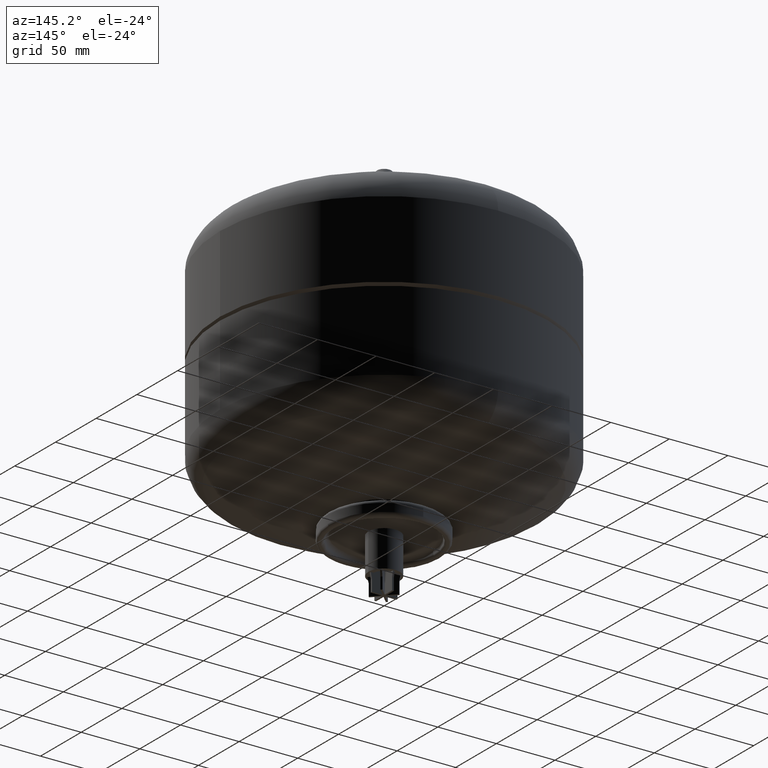
[diagram: clean part render]
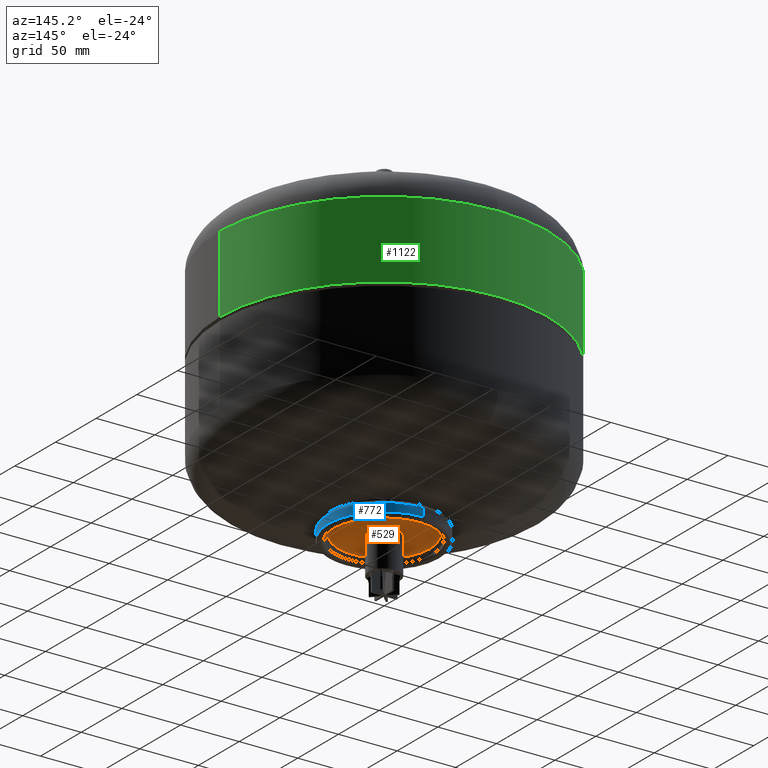
[diagram: same view with three faces highlighted in distinct colors, each labeled with its STEP entity id]
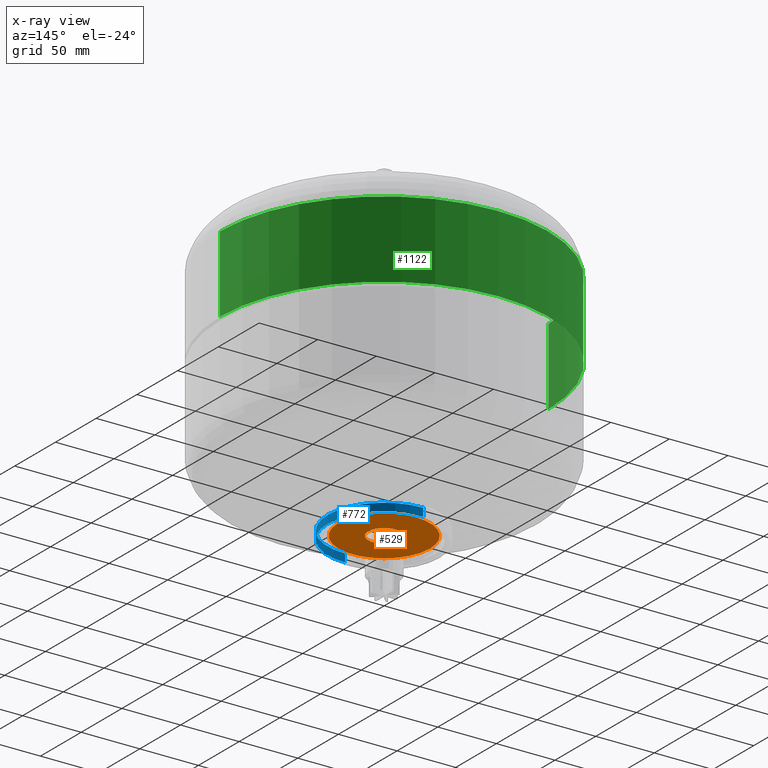
[diagram: x-ray of the same camera — body ghosted, the three highlighted faces saturated]
A machine part, auxiliary view with three faces highlighted in distinct colors.
The next image is the same camera in x-ray (body ghosted, the three faces saturated) — at least one of them is partly hidden behind the body in this view.
Their STEP definitions:

[orange] entity #529 — the highlighted planar face has unit normal (0, 0, -1).
#275=CARTESIAN_POINT('',(13.449999999999999,0.0,45.999999999999986));
#276=VERTEX_POINT('',#275);
#285=CARTESIAN_POINT('',(-13.449999999999999,1.647096E-015,45.999999999999993));
#286=VERTEX_POINT('',#285);
#287=CARTESIAN_POINT('',(0.0,0.0,45.999999999999993));
#288=DIRECTION('',(0.0,0.0,-1.0));
#289=DIRECTION('',(1.0,0.0,0.0));
#290=AXIS2_PLACEMENT_3D('',#287,#288,#289);
#291=CIRCLE('',#290,13.449999999999999);
#292=EDGE_CURVE('',#276,#286,#291,.T.);
#409=CARTESIAN_POINT('',(-39.000000000000007,3.136209E-016,46.0));
#410=VERTEX_POINT('',#409);
#436=CARTESIAN_POINT('',(39.000000000000007,-4.462344E-015,46.0));
#437=VERTEX_POINT('',#436);
#445=CARTESIAN_POINT('',(0.0,39.0,46.0));
#446=VERTEX_POINT('',#445);
#447=CARTESIAN_POINT('',(0.0,0.0,46.0));
#448=DIRECTION('',(0.0,0.0,-1.0));
#449=DIRECTION('',(0.0,1.0,0.0));
#450=AXIS2_PLACEMENT_3D('',#447,#448,#449);
#451=CIRCLE('',#450,39.000000000000007);
#452=EDGE_CURVE('',#446,#437,#451,.T.);
#454=CARTESIAN_POINT('',(0.0,0.0,46.0));
#455=DIRECTION('',(0.0,0.0,-1.0));
#456=DIRECTION('',(0.0,1.0,0.0));
#457=AXIS2_PLACEMENT_3D('',#454,#455,#456);
#458=CIRCLE('',#457,39.000000000000007);
#459=EDGE_CURVE('',#410,#446,#458,.T.);
#503=CARTESIAN_POINT('',(0.0,19.500000000000000,45.999999999999993));
#504=DIRECTION('',(0.0,0.0,-1.0));
#505=DIRECTION('',(-1.0,0.0,0.0));
#506=AXIS2_PLACEMENT_3D('',#503,#504,#505);
#507=PLANE('',#506);
#508=ORIENTED_EDGE('',*,*,#452,.T.);
#509=CARTESIAN_POINT('',(0.0,0.0,46.0));
#510=DIRECTION('',(0.0,0.0,-1.0));
#511=DIRECTION('',(0.0,1.0,0.0));
#512=AXIS2_PLACEMENT_3D('',#509,#510,#511);
#513=CIRCLE('',#512,39.000000000000007);
#514=EDGE_CURVE('',#437,#410,#513,.T.);
#515=ORIENTED_EDGE('',*,*,#514,.T.);
#516=ORIENTED_EDGE('',*,*,#459,.T.);
#517=EDGE_LOOP('',(#508,#515,#516));
#518=FACE_OUTER_BOUND('',#517,.T.);
#519=CARTESIAN_POINT('',(0.0,0.0,45.999999999999993));
#520=DIRECTION('',(0.0,0.0,-1.0));
#521=DIRECTION('',(1.0,0.0,0.0));
#522=AXIS2_PLACEMENT_3D('',#519,#520,#521);
#523=CIRCLE('',#522,13.449999999999999);
#524=EDGE_CURVE('',#286,#276,#523,.T.);
#525=ORIENTED_EDGE('',*,*,#524,.F.);
#526=ORIENTED_EDGE('',*,*,#292,.F.);
#527=EDGE_LOOP('',(#525,#526));
#528=FACE_BOUND('',#527,.T.);
#529=ADVANCED_FACE('',(#518,#528),#507,.T.);

[blue] entity #772 — the highlighted cylindrical surface (partial cylindrical patch) has radius 48 mm, axis along (0, -0, -1).
#130=CARTESIAN_POINT('',(0.0,48.0,42.999999999999993));
#131=VERTEX_POINT('',#130);
#132=CARTESIAN_POINT('',(0.0,48.0,50.000000000000007));
#133=VERTEX_POINT('',#132);
#134=CARTESIAN_POINT('',(0.0,48.0,42.999999999999993));
#135=DIRECTION('',(0.0,0.0,1.0));
#136=VECTOR('',#135,7.000000000000014);
#137=LINE('',#134,#136);
#138=EDGE_CURVE('',#131,#133,#137,.T.);
#149=CARTESIAN_POINT('',(-5.878110E-015,-48.000000000000007,43.0));
#150=VERTEX_POINT('',#149);
#158=CARTESIAN_POINT('',(-5.878110E-015,-48.000000000000007,50.000000000000014));
#159=VERTEX_POINT('',#158);
#160=CARTESIAN_POINT('',(-5.878110E-015,-48.000000000000007,43.0));
#161=DIRECTION('',(0.0,0.0,1.0));
#162=VECTOR('',#161,7.000000000000014);
#163=LINE('',#160,#162);
#164=EDGE_CURVE('',#150,#159,#163,.T.);
#242=CARTESIAN_POINT('',(48.000000000000007,-5.878110E-015,50.000000000000007));
#243=VERTEX_POINT('',#242);
#244=CARTESIAN_POINT('',(0.0,0.0,50.000000000000007));
#245=DIRECTION('',(0.0,0.0,-1.0));
#246=DIRECTION('',(0.0,1.0,0.0));
#247=AXIS2_PLACEMENT_3D('',#244,#245,#246);
#248=CIRCLE('',#247,48.000000000000007);
#249=EDGE_CURVE('',#243,#159,#248,.T.);
#483=CARTESIAN_POINT('',(48.000000000000007,-5.878110E-015,43.0));
#484=VERTEX_POINT('',#483);
#492=CARTESIAN_POINT('',(0.0,0.0,43.0));
#493=DIRECTION('',(0.0,0.0,-1.0));
#494=DIRECTION('',(0.0,1.0,0.0));
#495=AXIS2_PLACEMENT_3D('',#492,#493,#494);
#496=CIRCLE('',#495,48.000000000000007);
#497=EDGE_CURVE('',#484,#150,#496,.T.);
#553=CARTESIAN_POINT('',(0.0,0.0,43.0));
#554=DIRECTION('',(0.0,0.0,-1.0));
#555=DIRECTION('',(0.0,1.0,0.0));
#556=AXIS2_PLACEMENT_3D('',#553,#554,#555);
#557=CIRCLE('',#556,48.000000000000007);
#558=EDGE_CURVE('',#131,#484,#557,.T.);
#720=CARTESIAN_POINT('',(0.0,0.0,50.000000000000007));
#721=DIRECTION('',(0.0,0.0,-1.0));
#722=DIRECTION('',(0.0,1.0,0.0));
#723=AXIS2_PLACEMENT_3D('',#720,#721,#722);
#724=CIRCLE('',#723,48.000000000000007);
#725=EDGE_CURVE('',#133,#243,#724,.T.);
#759=CARTESIAN_POINT('',(0.0,0.0,47.0));
#760=DIRECTION('',(0.0,-1.045403E-016,-1.0));
#761=DIRECTION('',(0.0,1.0,0.0));
#762=AXIS2_PLACEMENT_3D('',#759,#760,#761);
#763=CYLINDRICAL_SURFACE('',#762,48.000000000000007);
#764=ORIENTED_EDGE('',*,*,#138,.T.);
#765=ORIENTED_EDGE('',*,*,#725,.T.);
#766=ORIENTED_EDGE('',*,*,#249,.T.);
#767=ORIENTED_EDGE('',*,*,#164,.F.);
#768=ORIENTED_EDGE('',*,*,#497,.F.);
#769=ORIENTED_EDGE('',*,*,#558,.F.);
#770=EDGE_LOOP('',(#764,#765,#766,#767,#768,#769));
#771=FACE_OUTER_BOUND('',#770,.T.);
#772=ADVANCED_FACE('',(#771),#763,.T.);

[green] entity #1122 — the highlighted cylindrical surface (partial cylindrical patch) has radius 140 mm, axis along (0, 0, 1).
#992=CARTESIAN_POINT('',(140.0,0.0,243.999999999999970));
#993=VERTEX_POINT('',#992);
#994=CARTESIAN_POINT('',(140.0,0.0,178.499999999999940));
#995=VERTEX_POINT('',#994);
#996=CARTESIAN_POINT('',(140.0,0.0,243.999999999999970));
#997=DIRECTION('',(0.0,0.0,-1.0));
#998=VECTOR('',#997,65.500000000000028);
#999=LINE('',#996,#998);
#1000=EDGE_CURVE('',#993,#995,#999,.T.);
#1002=CARTESIAN_POINT('',(-140.0,-1.714449E-014,243.999999999999970));
#1003=VERTEX_POINT('',#1002);
#1011=CARTESIAN_POINT('',(-139.999999999999970,-1.714449E-014,178.499999999999970));
#1012=VERTEX_POINT('',#1011);
#1013=CARTESIAN_POINT('',(-140.0,-1.714449E-014,243.999999999999970));
#1014=DIRECTION('',(0.0,0.0,-1.0));
#1015=VECTOR('',#1014,65.500000000000000);
#1016=LINE('',#1013,#1015);
#1017=EDGE_CURVE('',#1003,#1012,#1016,.T.);
#1095=CARTESIAN_POINT('',(0.0,0.0,178.499999999999940));
#1096=DIRECTION('',(0.0,0.0,1.0));
#1097=DIRECTION('',(1.0,0.0,0.0));
#1098=AXIS2_PLACEMENT_3D('',#1095,#1096,#1097);
#1099=CIRCLE('',#1098,140.0);
#1100=EDGE_CURVE('',#995,#1012,#1099,.T.);
#1105=CARTESIAN_POINT('',(0.0,0.0,238.999999999999970));
#1106=DIRECTION('',(0.0,0.0,1.0));
#1107=DIRECTION('',(1.0,0.0,0.0));
#1108=AXIS2_PLACEMENT_3D('',#1105,#1106,#1107);
#1109=CYLINDRICAL_SURFACE('',#1108,140.0);
#1110=ORIENTED_EDGE('',*,*,#1000,.T.);
#1111=ORIENTED_EDGE('',*,*,#1100,.T.);
#1112=ORIENTED_EDGE('',*,*,#1017,.F.);
#1113=CARTESIAN_POINT('',(0.0,0.0,243.999999999999970));
#1114=DIRECTION('',(0.0,0.0,-1.0));
#1115=DIRECTION('',(1.0,0.0,0.0));
#1116=AXIS2_PLACEMENT_3D('',#1113,#1114,#1115);
#1117=CIRCLE('',#1116,140.0);
#1118=EDGE_CURVE('',#1003,#993,#1117,.T.);
#1119=ORIENTED_EDGE('',*,*,#1118,.T.);
#1120=EDGE_LOOP('',(#1110,#1111,#1112,#1119));
#1121=FACE_OUTER_BOUND('',#1120,.T.);
#1122=ADVANCED_FACE('',(#1121),#1109,.T.);